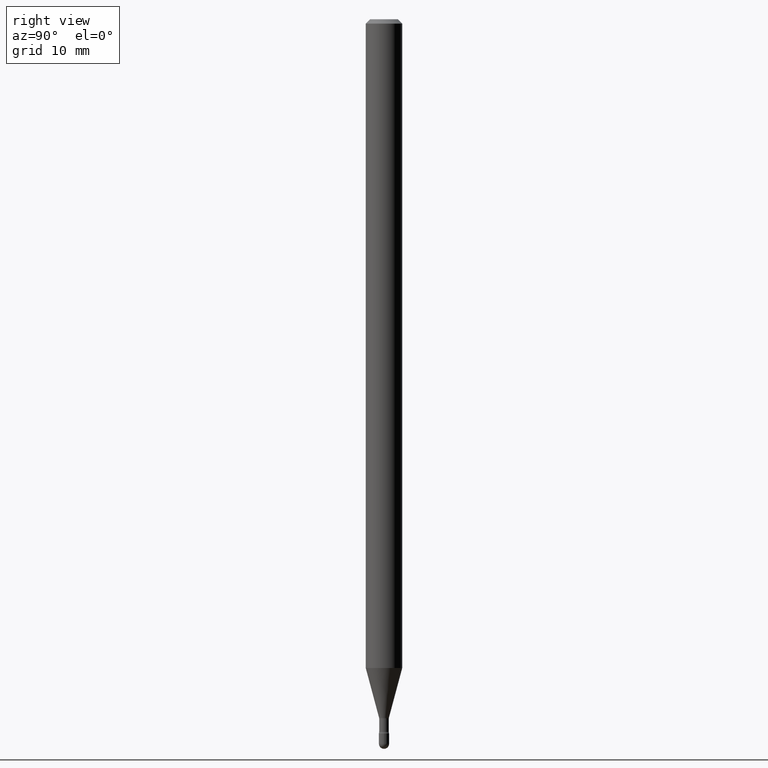
[diagram: clean part render]
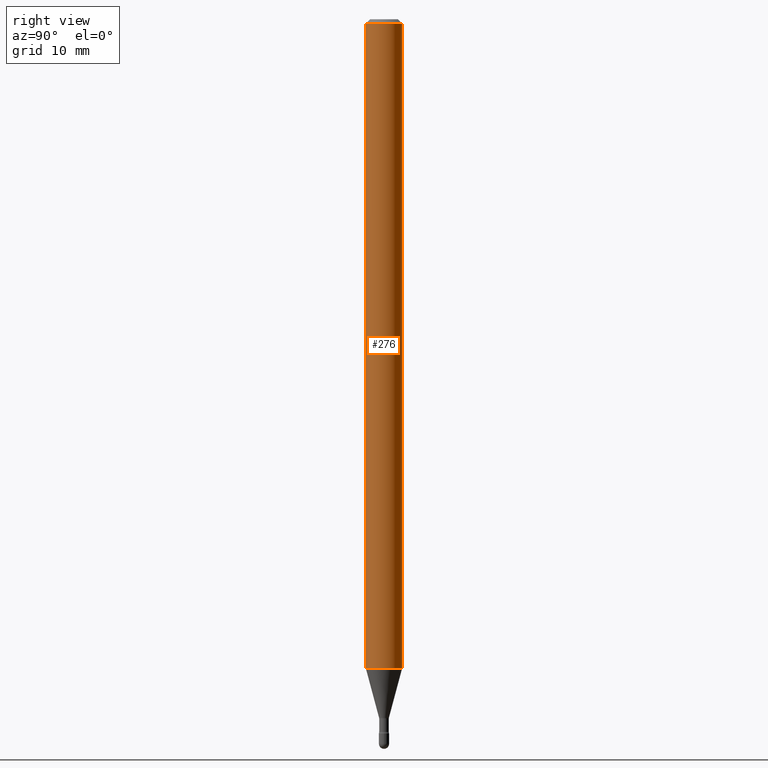
[diagram: same view with one face highlighted and labeled with its STEP entity id]
A machine part, right view. The second image highlights one B-rep face of the part: STEP entity #276.
In plain terms, the highlighted cylindrical surface (edge-blend (fillet) strip) has radius 1.5875 mm, axis along (-0, 0, 1).
Its self-contained STEP definition (entity closure, byte-faithful):
#4 = VECTOR ( 'NONE', #497, 39.37007874015748143 ) ;
#22 = DIRECTION ( 'NONE',  ( -2.445478580471014019E-29, 3.491467341509451420E-15, 1.000000000000000000 ) ) ;
#23 = ORIENTED_EDGE ( 'NONE', *, *, #449, .F. ) ;
#29 = LINE ( 'NONE', #33, #292 ) ;
#33 = CARTESIAN_POINT ( 'NONE',  ( 4.440892098500625669E-16, 0.06250000000000000000, 2.598566900469053741E-16 ) ) ;
#95 = EDGE_CURVE ( 'NONE', #524, #105, #29, .T. ) ;
#105 = VERTEX_POINT ( 'NONE', #410 ) ;
#107 = CARTESIAN_POINT ( 'NONE',  ( -4.364351673553374845E-16, -0.06250000000000778544, -2.223139060311453363 ) ) ;
#161 = CARTESIAN_POINT ( 'NONE',  ( 5.436638953400117610E-29, -7.762017424711450780E-15, -2.223139060311453363 ) ) ;
#167 = AXIS2_PLACEMENT_3D ( 'NONE', #161, #22, #510 ) ;
#169 = CIRCLE ( 'NONE', #531, 0.06250000000000000000 ) ;
#170 = CARTESIAN_POINT ( 'NONE',  ( -1.169113584055446105E-44, 1.669184350826100908E-30, 4.780733988912460139E-16 ) ) ;
#200 = ORIENTED_EDGE ( 'NONE', *, *, #219, .T. ) ;
#203 = EDGE_LOOP ( 'NONE', ( #200, #231, #563, #23 ) ) ;
#210 = DIRECTION ( 'NONE',  ( -2.445478580471014019E-29, 3.491467341509451420E-15, 1.000000000000000000 ) ) ;
#213 = CARTESIAN_POINT ( 'NONE',  ( 4.440892098501168504E-16, 0.06249999999999222844, -2.223139060311453807 ) ) ;
#219 = EDGE_CURVE ( 'NONE', #264, #524, #408, .T. ) ;
#231 = ORIENTED_EDGE ( 'NONE', *, *, #95, .T. ) ;
#232 = CARTESIAN_POINT ( 'NONE',  ( -4.364351673553916201E-16, -0.06250000000000000000, 6.962901077355868016E-16 ) ) ;
#264 = VERTEX_POINT ( 'NONE', #107 ) ;
#274 = LINE ( 'NONE', #232, #4 ) ;
#276 = ADVANCED_FACE ( 'NONE', ( #426 ), #300, .T. ) ;
#280 = CARTESIAN_POINT ( 'NONE',  ( 3.668217870706541208E-31, -5.237201012264205677E-17, -0.01500000000000008271 ) ) ;
#292 = VECTOR ( 'NONE', #210, 39.37007874015748143 ) ;
#300 = CYLINDRICAL_SURFACE ( 'NONE', #409, 0.06250000000000000000 ) ;
#320 = DIRECTION ( 'NONE',  ( -2.445478580471014019E-29, 3.491467341509451420E-15, 1.000000000000000000 ) ) ;
#352 = DIRECTION ( 'NONE',  ( -6.982962677686265922E-15, -1.000000000000000000, 3.491467341509452209E-15 ) ) ;
#359 = EDGE_CURVE ( 'NONE', #491, #105, #169, .T. ) ;
#368 = DIRECTION ( 'NONE',  ( -6.982962677686265922E-15, -1.000000000000000000, 3.483106191921935554E-15 ) ) ;
#408 = CIRCLE ( 'NONE', #167, 0.06250000000000000000 ) ;
#409 = AXIS2_PLACEMENT_3D ( 'NONE', #170, #481, #352 ) ;
#410 = CARTESIAN_POINT ( 'NONE',  ( 4.440892098501173434E-16, 0.06249999999999995143, -0.01500000000000030129 ) ) ;
#426 = FACE_OUTER_BOUND ( 'NONE', #203, .T. ) ;
#449 = EDGE_CURVE ( 'NONE', #264, #491, #274, .T. ) ;
#481 = DIRECTION ( 'NONE',  ( -2.445478580471014019E-29, 3.491467341509451420E-15, 1.000000000000000000 ) ) ;
#491 = VERTEX_POINT ( 'NONE', #512 ) ;
#497 = DIRECTION ( 'NONE',  ( -2.445478580471014019E-29, 3.491467341509451420E-15, 1.000000000000000000 ) ) ;
#510 = DIRECTION ( 'NONE',  ( -6.982962677686265922E-15, -1.000000000000000000, 4.370956789862821150E-15 ) ) ;
#512 = CARTESIAN_POINT ( 'NONE',  ( -4.364351673553912750E-16, -0.06250000000000005551, -0.01499999999999986587 ) ) ;
#524 = VERTEX_POINT ( 'NONE', #213 ) ;
#531 = AXIS2_PLACEMENT_3D ( 'NONE', #280, #320, #368 ) ;
#563 = ORIENTED_EDGE ( 'NONE', *, *, #359, .F. ) ;